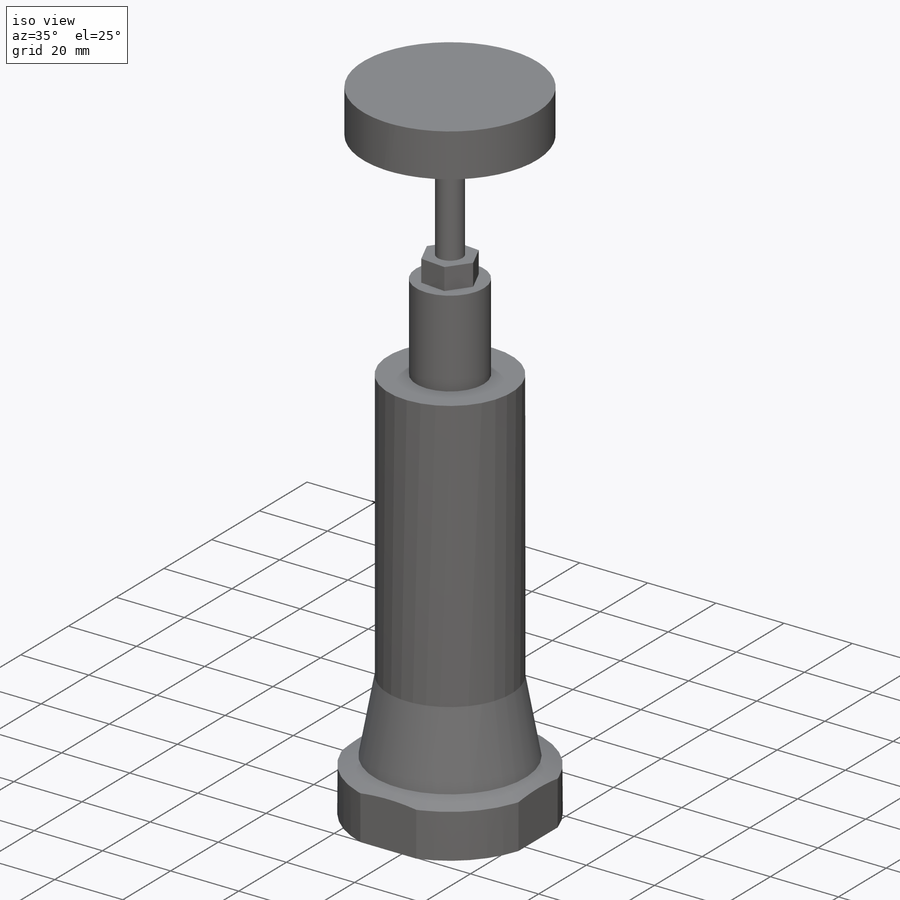
[diagram: iso view]
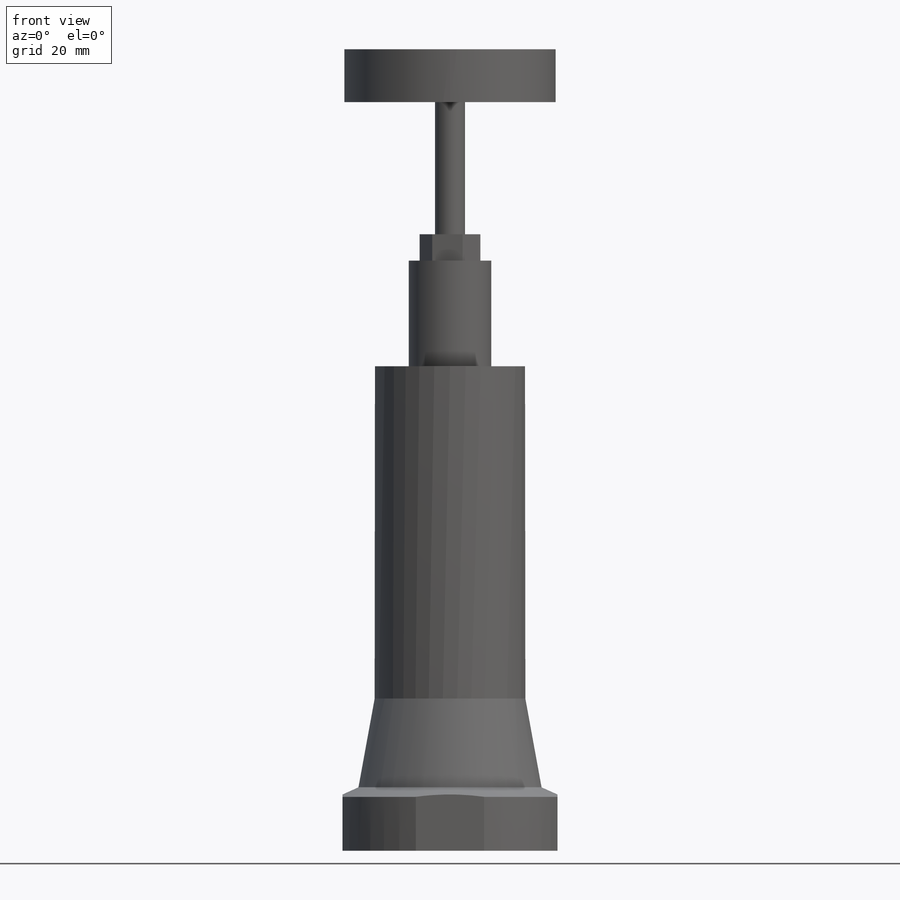
[diagram: front view]
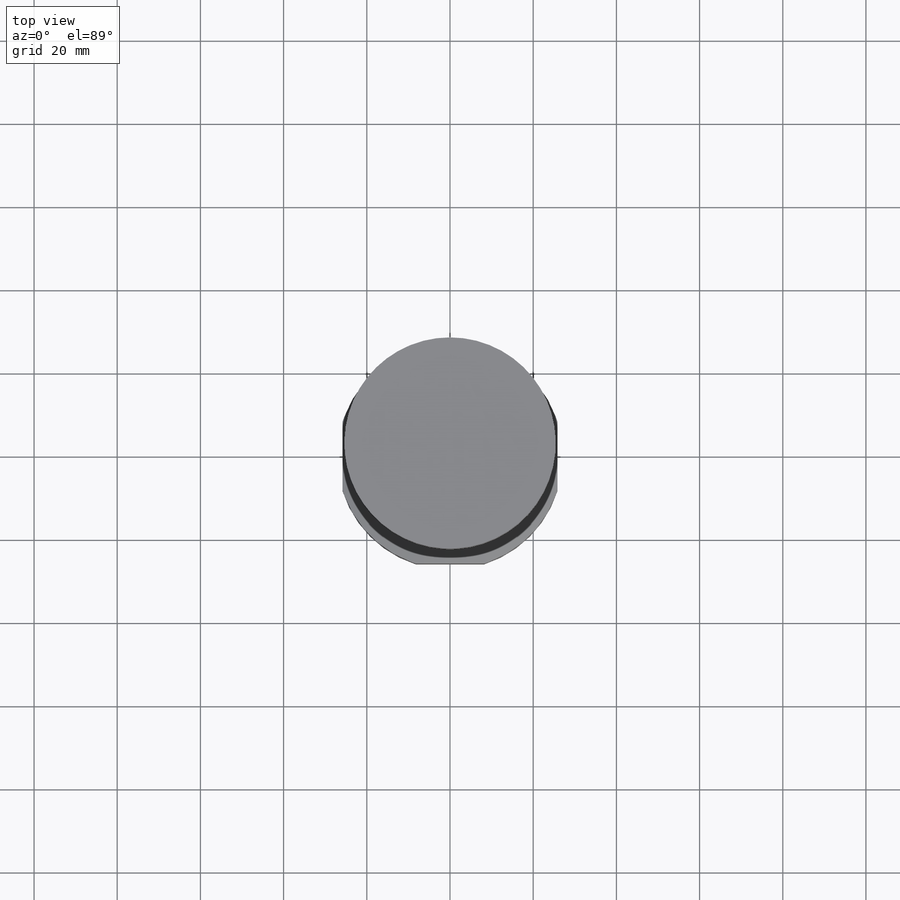
[diagram: top view]
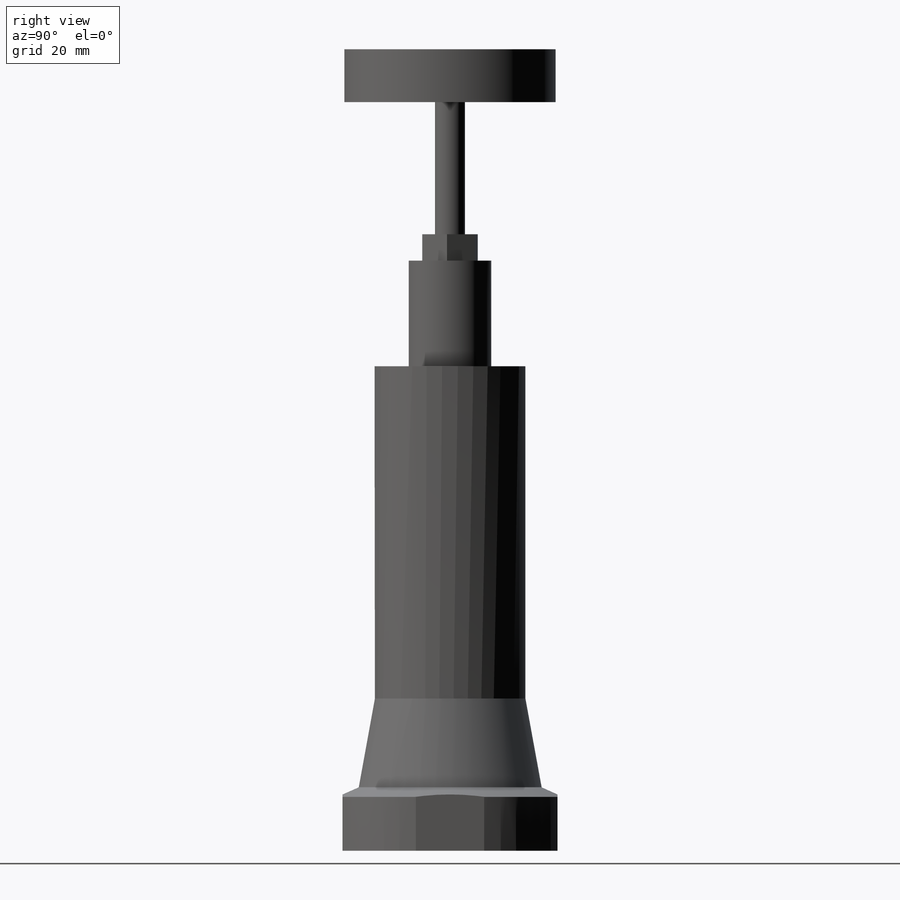
[diagram: right view]
SOLIDWORKS PART (.sldprt)
format: sldprt  version: not decoded by parser v0  size: 215,040 bytes
history: native  units: mm
features: sketch x7, extrude x4, cut_extrude x2, material x1, revolve x1 (+12 scaffold rows collapsed)
feature tree (27):
  scaffold x12  (default folders/planes/origin — collapsed)
  material  "Material <not specified>"
  sketch  "Sketch1"  dims[D1=18.1356mm D2=27.1145mm D3=79.883mm D4=116.459mm D5=12.954mm D6=2.286mm D7=5.08mm]
  revolve  "Revolve1"  Angle=360deg
  sketch  "Sketch2"  dims[D1=51.689mm]
  cut_extrude  "Extrude1"  Depth=17.78mm
  sketch  "Sketch3"  dims[D1=19.812mm]
  extrude  "Extrude2"  Depth=25.4mm
  sketch  "Sketch4"  dims[D1=12.7mm]
  extrude  "Extrude3"  Depth=6.35mm
  sketch  "Sketch5"  dims[D1=7.239mm]
  cut_extrude  "Extrude4"  Depth=12.7mm
  sketch  "Sketch6"
  extrude  "Extrude5"  Depth=31.75mm
  sketch  "Sketch7"  dims[D1=50.8mm]
  extrude  "Extrude6"  Depth=12.7mm
decode coverage: 13 of 14 modeling features carry decoded parameters
note: suppression state not decoded; provenance and decode notes live in map.json
